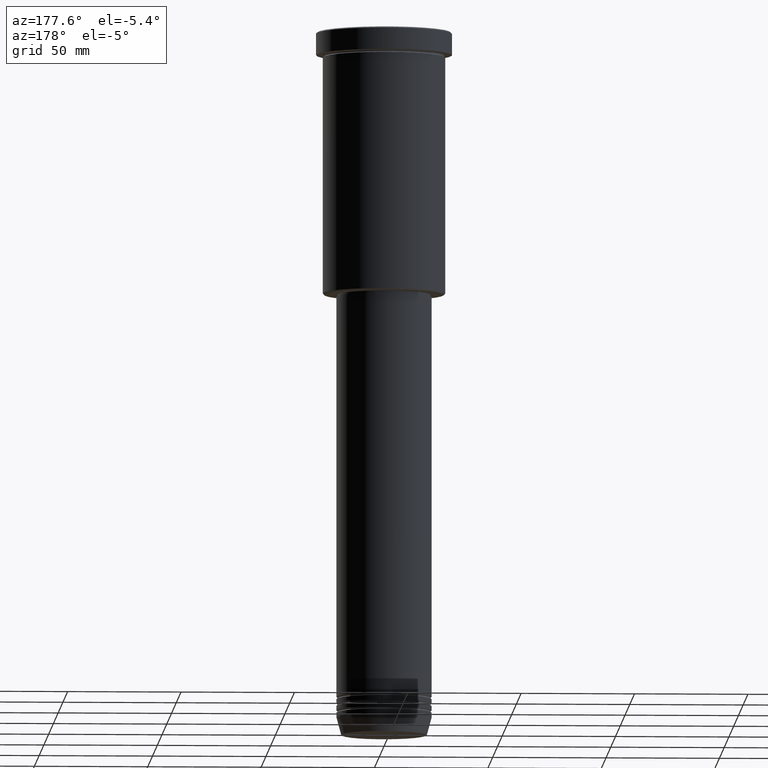
[diagram: clean part render]
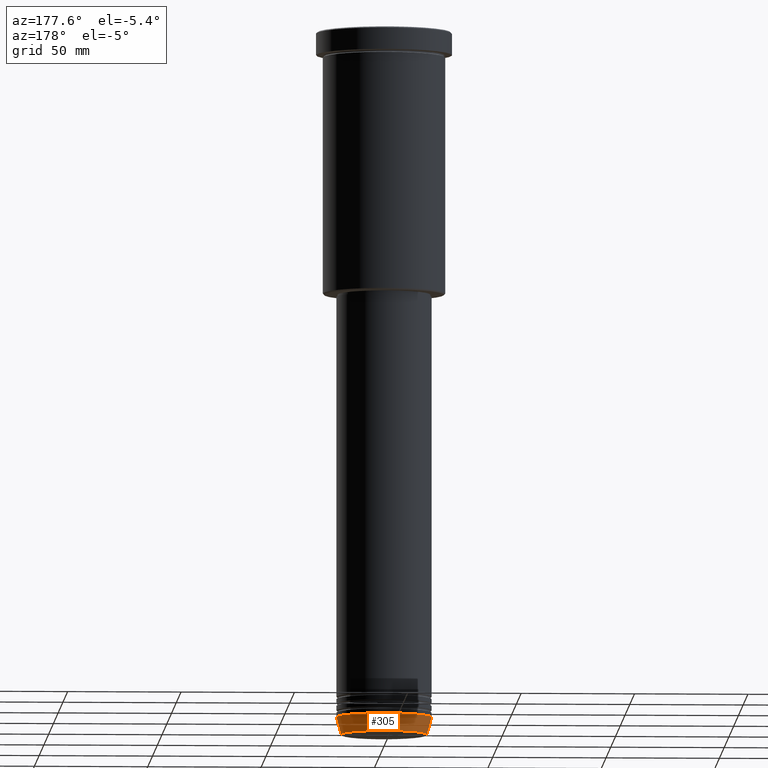
[diagram: same view with one face highlighted and labeled with its STEP entity id]
A machine part, auxiliary view. The second image highlights one B-rep face of the part: STEP entity #305.
In plain terms, the highlighted conical surface has half-angle 15 deg.
Its self-contained STEP definition (entity closure, byte-faithful):
#13 = CARTESIAN_POINT ( 'NONE',  ( 18.95570587970606624, 0.000000000000000000, -310.6294095225512706 ) ) ;
#21 = CARTESIAN_POINT ( 'NONE',  ( 0.000000000000000000, 0.000000000000000000, -303.0000000000000000 ) ) ;
#42 = DIRECTION ( 'NONE',  ( 1.000000000000000000, 0.000000000000000000, 0.000000000000000000 ) ) ;
#68 = ORIENTED_EDGE ( 'NONE', *, *, #140, .F. ) ;
#74 = VERTEX_POINT ( 'NONE', #641 ) ;
#78 = AXIS2_PLACEMENT_3D ( 'NONE', #21, #391, #304 ) ;
#98 = DIRECTION ( 'NONE',  ( 1.000000000000000000, 0.000000000000000000, 0.000000000000000000 ) ) ;
#140 = EDGE_CURVE ( 'NONE', #550, #1046, #896, .T. ) ;
#259 = DIRECTION ( 'NONE',  ( -0.000000000000000000, -0.000000000000000000, 1.000000000000000000 ) ) ;
#260 = ORIENTED_EDGE ( 'NONE', *, *, #465, .T. ) ;
#296 = ORIENTED_EDGE ( 'NONE', *, *, #1080, .F. ) ;
#304 = DIRECTION ( 'NONE',  ( 1.000000000000000000, 0.000000000000000000, 0.000000000000000000 ) ) ;
#305 = ADVANCED_FACE ( 'NONE', ( #767 ), #1004, .T. ) ;
#344 = AXIS2_PLACEMENT_3D ( 'NONE', #547, #259, #98 ) ;
#346 = ORIENTED_EDGE ( 'NONE', *, *, #836, .T. ) ;
#370 = CIRCLE ( 'NONE', #471, 18.95570587970606624 ) ;
#391 = DIRECTION ( 'NONE',  ( -0.000000000000000000, -0.000000000000000000, 1.000000000000000000 ) ) ;
#465 = EDGE_CURVE ( 'NONE', #480, #74, #370, .T. ) ;
#471 = AXIS2_PLACEMENT_3D ( 'NONE', #770, #783, #42 ) ;
#480 = VERTEX_POINT ( 'NONE', #13 ) ;
#516 = VECTOR ( 'NONE', #1073, 1000.000000000000114 ) ;
#547 = CARTESIAN_POINT ( 'NONE',  ( 0.000000000000000000, 0.000000000000000000, -303.0000000000000000 ) ) ;
#550 = VERTEX_POINT ( 'NONE', #588 ) ;
#588 = CARTESIAN_POINT ( 'NONE',  ( 21.00000000000000000, 0.000000000000000000, -303.0000000000000000 ) ) ;
#641 = CARTESIAN_POINT ( 'NONE',  ( -18.95570587970606624, 2.446581365662755730E-15, -310.6294095225512706 ) ) ;
#726 = LINE ( 'NONE', #897, #1183 ) ;
#731 = CARTESIAN_POINT ( 'NONE',  ( 21.00000000000000000, 0.000000000000000000, -303.0000000000000000 ) ) ;
#767 = FACE_OUTER_BOUND ( 'NONE', #1062, .T. ) ;
#770 = CARTESIAN_POINT ( 'NONE',  ( 0.000000000000000000, 0.000000000000000000, -310.6294095225512706 ) ) ;
#782 = LINE ( 'NONE', #731, #516 ) ;
#783 = DIRECTION ( 'NONE',  ( -0.000000000000000000, -0.000000000000000000, 1.000000000000000000 ) ) ;
#836 = EDGE_CURVE ( 'NONE', #74, #1046, #726, .T. ) ;
#896 = CIRCLE ( 'NONE', #344, 21.00000000000000000 ) ;
#897 = CARTESIAN_POINT ( 'NONE',  ( -21.00000000000000000, 2.571758278209441661E-15, -303.0000000000000000 ) ) ;
#1004 = CONICAL_SURFACE ( 'NONE', #78, 21.00000000000000000, 0.2617993877991499629 ) ;
#1046 = VERTEX_POINT ( 'NONE', #1083 ) ;
#1062 = EDGE_LOOP ( 'NONE', ( #260, #346, #68, #296 ) ) ;
#1073 = DIRECTION ( 'NONE',  ( 0.2588190451025212391, 0.000000000000000000, 0.9659258262890680902 ) ) ;
#1080 = EDGE_CURVE ( 'NONE', #480, #550, #782, .T. ) ;
#1081 = DIRECTION ( 'NONE',  ( -0.2588190451025212391, 3.169619151431771721E-17, 0.9659258262890680902 ) ) ;
#1083 = CARTESIAN_POINT ( 'NONE',  ( -21.00000000000000000, 2.571758278209441661E-15, -303.0000000000000000 ) ) ;
#1183 = VECTOR ( 'NONE', #1081, 1000.000000000000114 ) ;